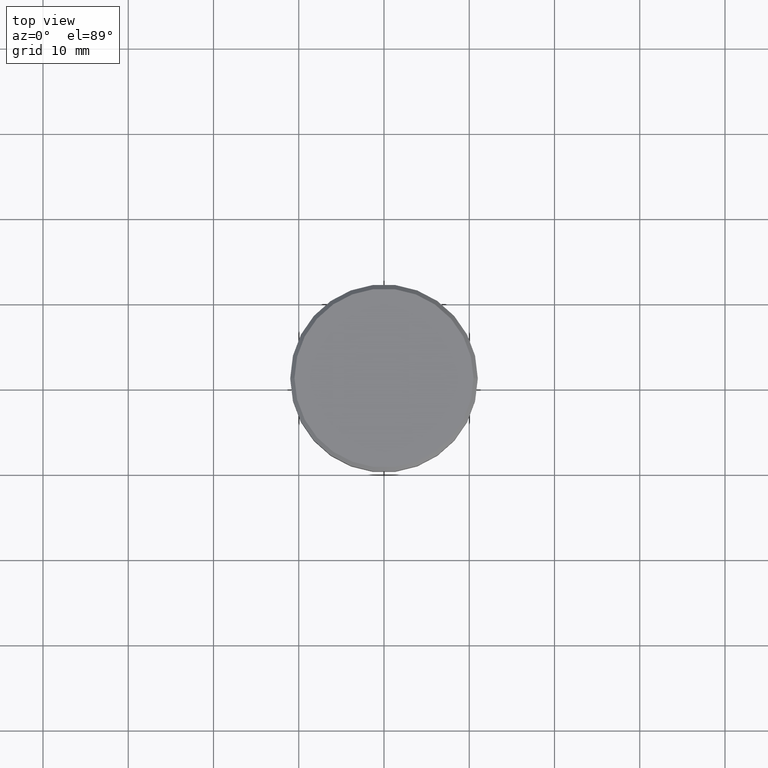
[diagram: clean part render]
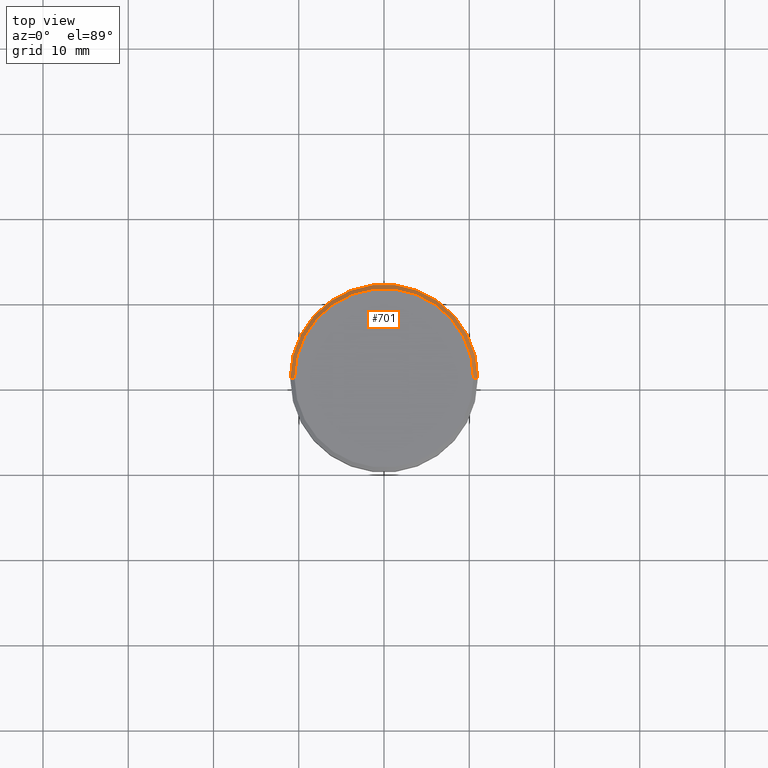
[diagram: same view with one face highlighted and labeled with its STEP entity id]
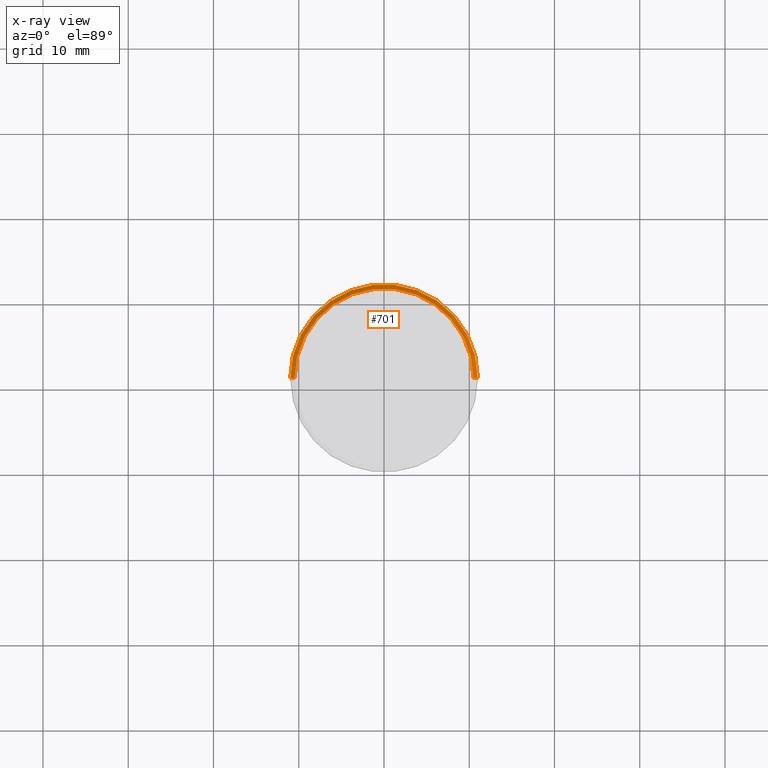
[diagram: x-ray of the same camera — body ghosted, the highlighted face saturated]
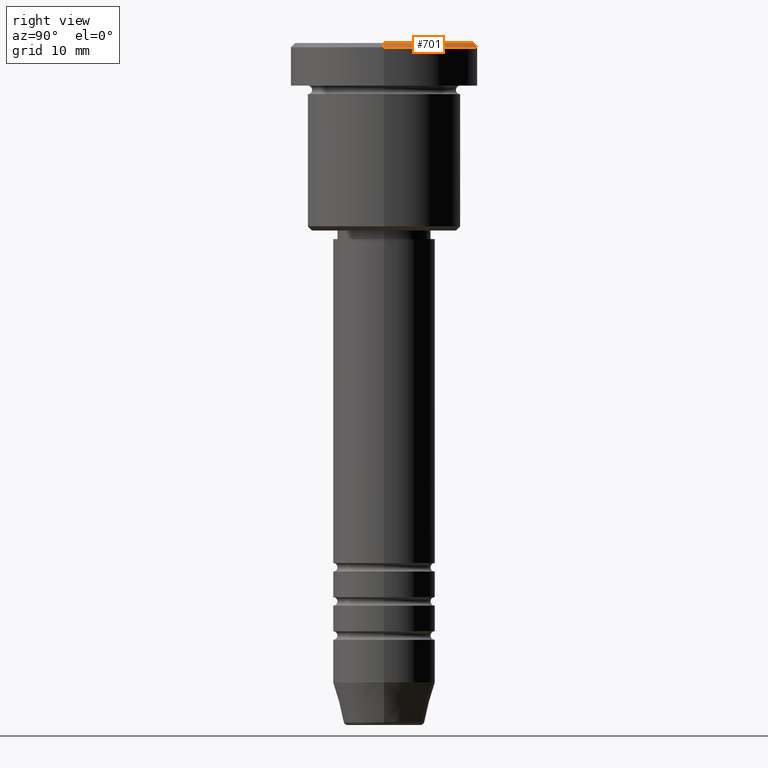
[diagram: same view with one face highlighted and labeled with its STEP entity id]
A machine part, top view. The second image highlights one B-rep face of the part: STEP entity #701.
The next image is the same camera in x-ray: the body ghosted, the highlighted face saturated — about 0% of this face is hidden behind the body in this view.
A second angle (right view) of the same face is appended — the face is thin or edge-on in the first view.
In plain terms, the highlighted conical surface has half-angle 45 deg.
Its self-contained STEP definition (entity closure, byte-faithful):
#22 = DIRECTION ( 'NONE',  ( -1.000000000000000000, 0.000000000000000000, 0.000000000000000000 ) ) ;
#50 = CONICAL_SURFACE ( 'NONE', #543, 10.50000000000000178, 0.7853981633974310705 ) ;
#117 = ORIENTED_EDGE ( 'NONE', *, *, #1110, .T. ) ;
#122 = DIRECTION ( 'NONE',  ( 0.000000000000000000, 0.000000000000000000, -1.000000000000000000 ) ) ;
#135 = CIRCLE ( 'NONE', #985, 10.50000000000000178 ) ;
#145 = EDGE_CURVE ( 'NONE', #540, #1040, #647, .T. ) ;
#203 = EDGE_LOOP ( 'NONE', ( #737, #117, #1141, #628 ) ) ;
#231 = VERTEX_POINT ( 'NONE', #944 ) ;
#271 = AXIS2_PLACEMENT_3D ( 'NONE', #716, #337, #1145 ) ;
#337 = DIRECTION ( 'NONE',  ( 0.000000000000000000, 0.000000000000000000, -1.000000000000000000 ) ) ;
#345 = VERTEX_POINT ( 'NONE', #675 ) ;
#364 = EDGE_CURVE ( 'NONE', #1040, #231, #477, .T. ) ;
#389 = CARTESIAN_POINT ( 'NONE',  ( 0.000000000000000000, 0.000000000000000000, 0.000000000000000000 ) ) ;
#398 = LINE ( 'NONE', #677, #825 ) ;
#451 = CARTESIAN_POINT ( 'NONE',  ( -11.00000000000000178, 1.347111479062088602E-15, -0.5000000000000159872 ) ) ;
#477 = CIRCLE ( 'NONE', #271, 11.00000000000000178 ) ;
#540 = VERTEX_POINT ( 'NONE', #924 ) ;
#543 = AXIS2_PLACEMENT_3D ( 'NONE', #389, #122, #22 ) ;
#552 = DIRECTION ( 'NONE',  ( 1.000000000000000000, 0.000000000000000000, 0.000000000000000000 ) ) ;
#582 = DIRECTION ( 'NONE',  ( 0.7071067811865353603, 8.659560562354783714E-17, -0.7071067811865597852 ) ) ;
#628 = ORIENTED_EDGE ( 'NONE', *, *, #145, .F. ) ;
#645 = DIRECTION ( 'NONE',  ( -0.000000000000000000, -0.000000000000000000, 1.000000000000000000 ) ) ;
#647 = LINE ( 'NONE', #828, #728 ) ;
#660 = DIRECTION ( 'NONE',  ( -0.7071067811865353603, 0.000000000000000000, -0.7071067811865597852 ) ) ;
#675 = CARTESIAN_POINT ( 'NONE',  ( 10.50000000000000178, 1.316495309083404815E-15, 0.000000000000000000 ) ) ;
#677 = CARTESIAN_POINT ( 'NONE',  ( 10.50000000000000178, 1.285879139104721028E-15, 0.000000000000000000 ) ) ;
#701 = ADVANCED_FACE ( 'NONE', ( #1115 ), #50, .T. ) ;
#716 = CARTESIAN_POINT ( 'NONE',  ( 0.000000000000000000, 0.000000000000000000, -0.5000000000000159872 ) ) ;
#728 = VECTOR ( 'NONE', #660, 1000.000000000000114 ) ;
#737 = ORIENTED_EDGE ( 'NONE', *, *, #966, .F. ) ;
#825 = VECTOR ( 'NONE', #582, 1000.000000000000114 ) ;
#828 = CARTESIAN_POINT ( 'NONE',  ( -10.50000000000000178, 0.000000000000000000, 0.000000000000000000 ) ) ;
#924 = CARTESIAN_POINT ( 'NONE',  ( -10.50000000000000178, 0.000000000000000000, 0.000000000000000000 ) ) ;
#944 = CARTESIAN_POINT ( 'NONE',  ( 11.00000000000000178, 0.000000000000000000, -0.5000000000000159872 ) ) ;
#966 = EDGE_CURVE ( 'NONE', #345, #540, #135, .T. ) ;
#985 = AXIS2_PLACEMENT_3D ( 'NONE', #1169, #645, #552 ) ;
#1040 = VERTEX_POINT ( 'NONE', #451 ) ;
#1110 = EDGE_CURVE ( 'NONE', #345, #231, #398, .T. ) ;
#1115 = FACE_OUTER_BOUND ( 'NONE', #203, .T. ) ;
#1141 = ORIENTED_EDGE ( 'NONE', *, *, #364, .F. ) ;
#1145 = DIRECTION ( 'NONE',  ( 1.000000000000000000, 0.000000000000000000, 0.000000000000000000 ) ) ;
#1169 = CARTESIAN_POINT ( 'NONE',  ( 0.000000000000000000, 0.000000000000000000, 0.000000000000000000 ) ) ;